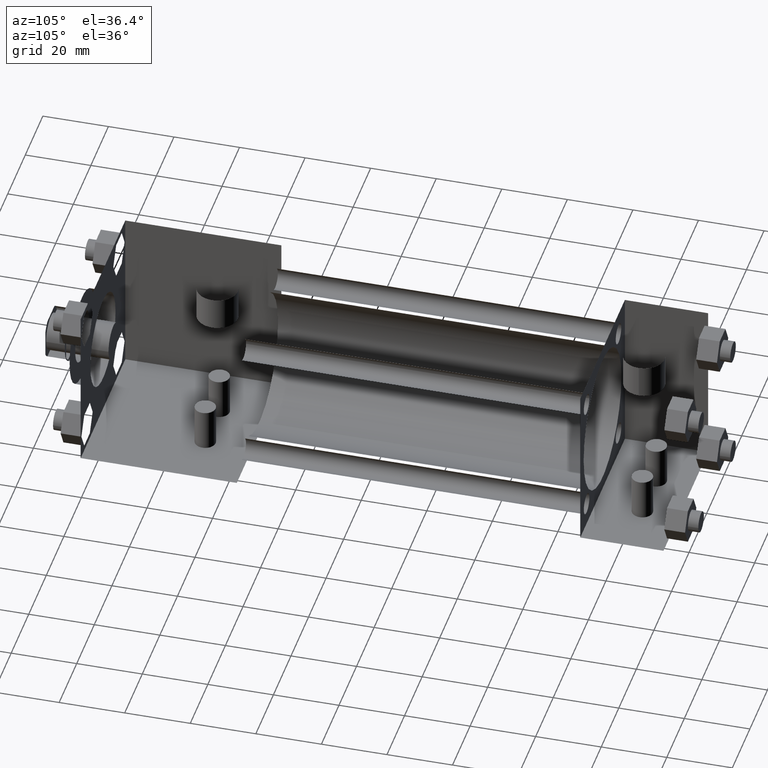
[diagram: clean part render]
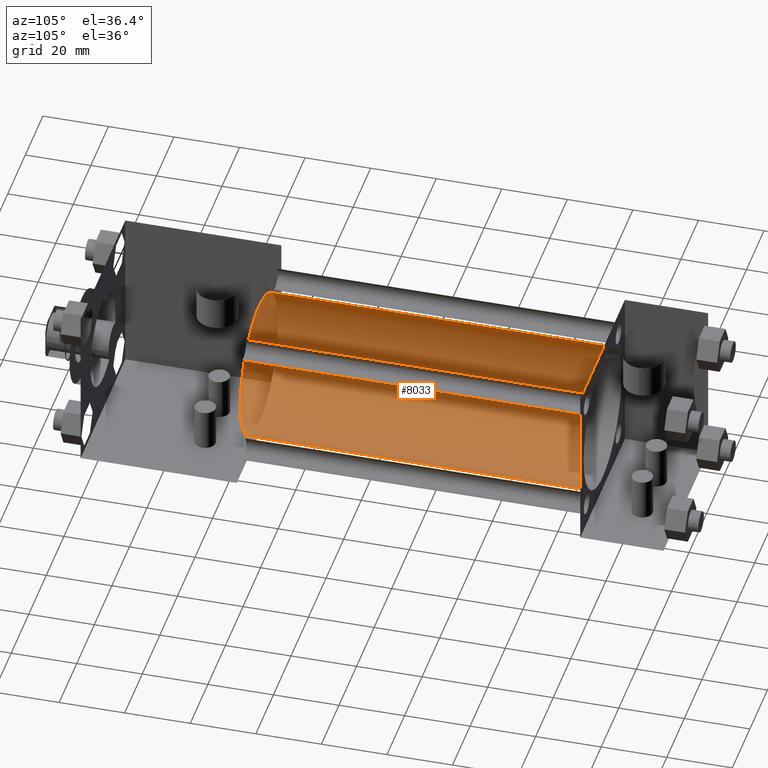
[diagram: same view with one face highlighted and labeled with its STEP entity id]
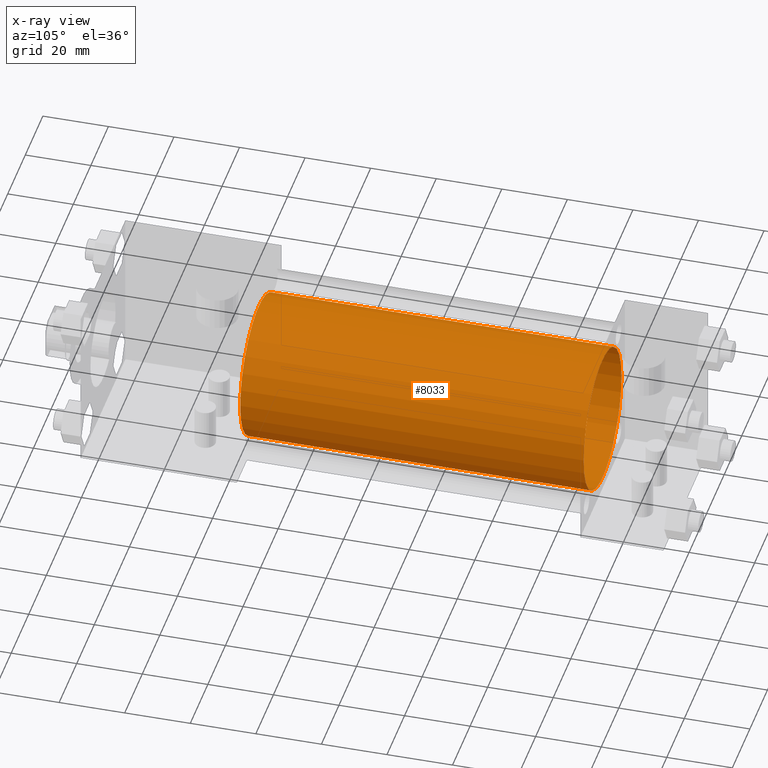
[diagram: x-ray of the same camera — body ghosted, the highlighted face saturated]
A machine part, auxiliary view. The second image highlights one B-rep face of the part: STEP entity #8033.
The next image is the same camera in x-ray: the body ghosted, the highlighted face saturated — about 0% of this face is hidden behind the body in this view.
In plain terms, the highlighted cylindrical surface (bore or boss wall) has radius 21.463 mm, axis along (0, -1, 0).
Its self-contained STEP definition (entity closure, byte-faithful):
#942=EDGE_CURVE('',#948,#948,#943,.T.);
#943=CIRCLE('',#944,2.146300000E+001);
#944=AXIS2_PLACEMENT_3D('',#945,#946,#947);
#945=CARTESIAN_POINT('',(0.000000000E+000,6.350000000E+001,0.000000000E+000));
#946=DIRECTION('',(0.0E+000,1.0E+000,0.0E+000));
#947=DIRECTION('',(-1.0E+000,0.0E+000,0.0E+000));
#948=VERTEX_POINT('',#949);
#949=CARTESIAN_POINT('',(2.146300000E+001,6.350000000E+001,0.000000000E+000));
#2117=FACE_OUTER_BOUND('',#2119,.T.);
#2118=FACE_BOUND('',#2120,.T.);
#2119=EDGE_LOOP('',(#2121));
#2120=EDGE_LOOP('',(#2130));
#2121=ORIENTED_EDGE('',*,*,#2122,.F.);
#2122=EDGE_CURVE('',#2128,#2128,#2123,.T.);
#2123=CIRCLE('',#2124,2.146300000E+001);
#2124=AXIS2_PLACEMENT_3D('',#2125,#2126,#2127);
#2125=CARTESIAN_POINT('',(0.000000000E+000,1.682750000E+002,0.000000000E+000));
#2126=DIRECTION('',(0.0E+000,1.0E+000,0.0E+000));
#2127=DIRECTION('',(1.0E+000,0.0E+000,0.0E+000));
#2128=VERTEX_POINT('',#2129);
#2129=CARTESIAN_POINT('',(2.146300000E+001,1.682750000E+002,0.000000000E+000));
#2130=ORIENTED_EDGE('',*,*,#942,.T.);
#2131=CYLINDRICAL_SURFACE('',#2132,2.146300000E+001);
#2132=AXIS2_PLACEMENT_3D('',#2133,#2134,#2135);
#2133=CARTESIAN_POINT('',(0.000000000E+000,1.682750000E+002,0.000000000E+000));
#2134=DIRECTION('',(0.0E+000,-1.0E+000,0.0E+000));
#2135=DIRECTION('',(0.0E+000,0.0E+000,-1.0E+000));
#8033=ADVANCED_FACE('',(#2117,#2118),#2131,.T.);